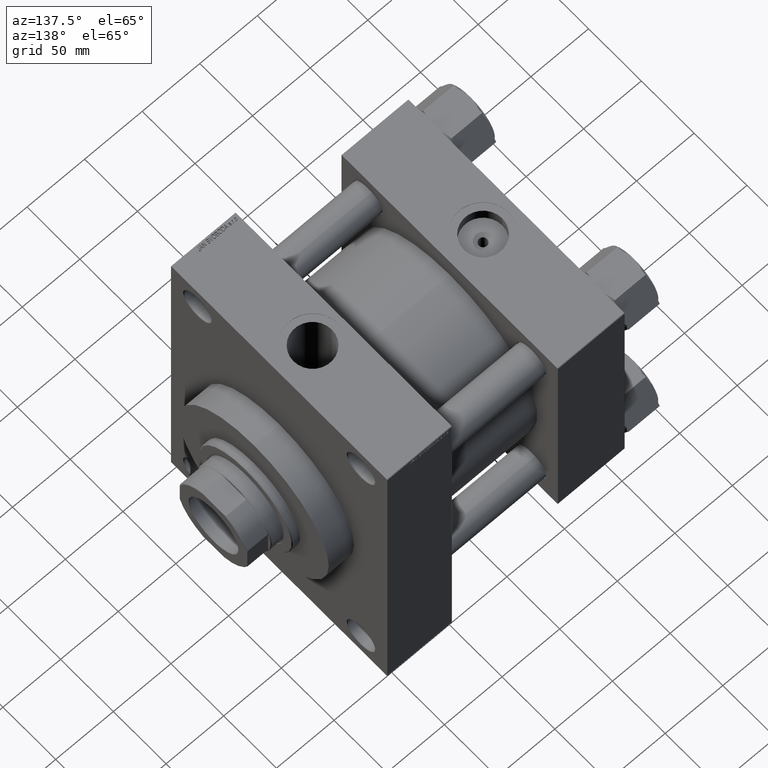
[diagram: clean part render]
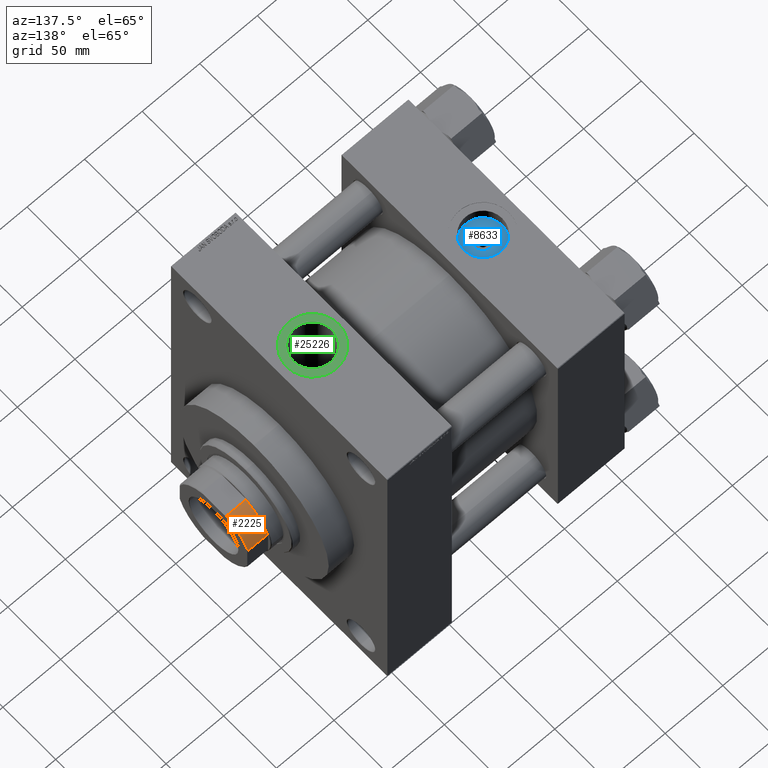
[diagram: same view with three faces highlighted in distinct colors, each labeled with its STEP entity id]
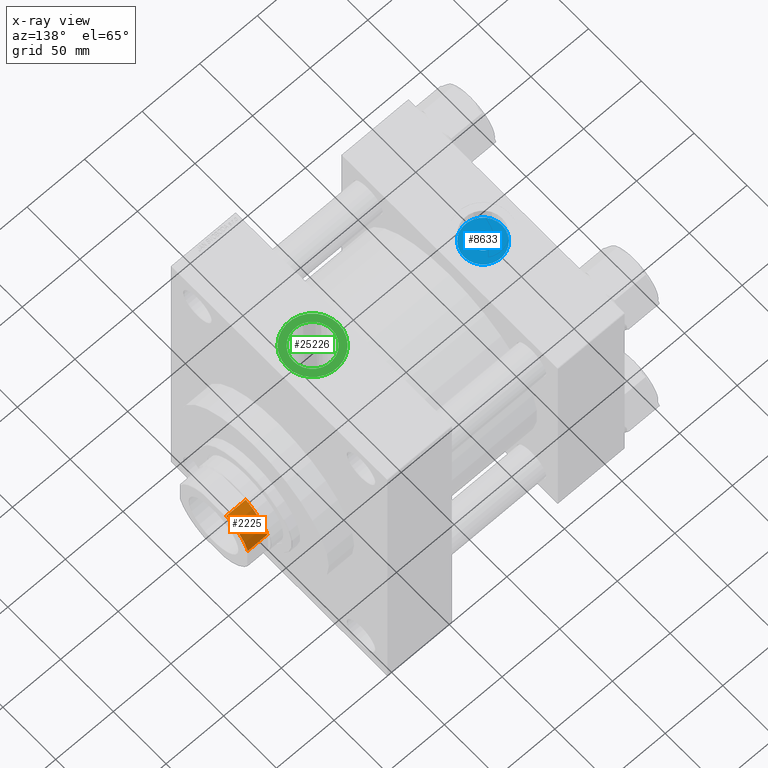
[diagram: x-ray of the same camera — body ghosted, the three highlighted faces saturated]
A machine part, auxiliary view with three faces highlighted in distinct colors.
The next image is the same camera in x-ray (body ghosted, the three faces saturated) — at least one of them is partly hidden behind the body in this view.
Their STEP definitions:

[orange] entity #2225 — the highlighted cylindrical surface (partial cylindrical patch) has radius 34 mm, axis along (1, 0, 0).
#373 = VERTEX_POINT ( 'NONE', #11302 ) ;
#844 = CIRCLE ( 'NONE', #10875, 34.00000000000000000 ) ;
#2225 = ADVANCED_FACE ( 'NONE', ( #25625 ), #29240, .T. ) ;
#7397 = ORIENTED_EDGE ( 'NONE', *, *, #36973, .T. ) ;
#9173 = CARTESIAN_POINT ( 'NONE',  ( -11.48912529307606256, -32.00000000000000000, 204.4999999999997442 ) ) ;
#10465 = CARTESIAN_POINT ( 'NONE',  ( 0.000000000000000000, 0.000000000000000000, 187.5000000000000853 ) ) ;
#10630 = EDGE_CURVE ( 'NONE', #43075, #47226, #11281, .T. ) ;
#10875 = AXIS2_PLACEMENT_3D ( 'NONE', #10465, #25158, #18158 ) ;
#11281 = CIRCLE ( 'NONE', #35955, 34.00000000000000000 ) ;
#11302 = CARTESIAN_POINT ( 'NONE',  ( -31.99999999999999289, -11.48912529307609454, 187.5000000000000853 ) ) ;
#11425 = ORIENTED_EDGE ( 'NONE', *, *, #10630, .T. ) ;
#14829 = LINE ( 'NONE', #22040, #22110 ) ;
#18158 = DIRECTION ( 'NONE',  ( -1.000000000000000000, 0.000000000000000000, 0.000000000000000000 ) ) ;
#18166 = CARTESIAN_POINT ( 'NONE',  ( 0.000000000000000000, 0.000000000000000000, -0.001000000000001000089 ) ) ;
#18401 = VERTEX_POINT ( 'NONE', #22426 ) ;
#18501 = VECTOR ( 'NONE', #33820, 1000.000000000000000 ) ;
#19465 = EDGE_CURVE ( 'NONE', #373, #47226, #19828, .T. ) ;
#19828 = LINE ( 'NONE', #22718, #18501 ) ;
#21034 = EDGE_CURVE ( 'NONE', #373, #18401, #844, .T. ) ;
#21199 = CARTESIAN_POINT ( 'NONE',  ( 0.000000000000000000, 0.000000000000000000, 204.4999999999998010 ) ) ;
#21929 = AXIS2_PLACEMENT_3D ( 'NONE', #18166, #22491, #44893 ) ;
#22040 = CARTESIAN_POINT ( 'NONE',  ( -11.48912529307606256, -32.00000000000000000, -0.001000000000001000089 ) ) ;
#22110 = VECTOR ( 'NONE', #33609, 1000.000000000000000 ) ;
#22426 = CARTESIAN_POINT ( 'NONE',  ( -11.48912529307606256, -32.00000000000000000, 187.5000000000000853 ) ) ;
#22491 = DIRECTION ( 'NONE',  ( -0.000000000000000000, -0.000000000000000000, 1.000000000000000000 ) ) ;
#22718 = CARTESIAN_POINT ( 'NONE',  ( -31.99999999999999289, -11.48912529307609454, -0.001000000000001000089 ) ) ;
#25158 = DIRECTION ( 'NONE',  ( -0.000000000000000000, -0.000000000000000000, 1.000000000000000000 ) ) ;
#25625 = FACE_OUTER_BOUND ( 'NONE', #26316, .T. ) ;
#26316 = EDGE_LOOP ( 'NONE', ( #7397, #11425, #30455, #30575 ) ) ;
#29189 = CARTESIAN_POINT ( 'NONE',  ( -31.99999999999999289, -11.48912529307609454, 204.4999999999997442 ) ) ;
#29240 = CYLINDRICAL_SURFACE ( 'NONE', #21929, 34.00000000000000000 ) ;
#30455 = ORIENTED_EDGE ( 'NONE', *, *, #19465, .F. ) ;
#30575 = ORIENTED_EDGE ( 'NONE', *, *, #21034, .T. ) ;
#31323 = DIRECTION ( 'NONE',  ( 1.000000000000000000, 0.000000000000000000, 0.000000000000000000 ) ) ;
#32271 = DIRECTION ( 'NONE',  ( -0.000000000000000000, -0.000000000000000000, -1.000000000000000000 ) ) ;
#33609 = DIRECTION ( 'NONE',  ( -0.000000000000000000, -0.000000000000000000, 1.000000000000000000 ) ) ;
#33820 = DIRECTION ( 'NONE',  ( -0.000000000000000000, -0.000000000000000000, 1.000000000000000000 ) ) ;
#35955 = AXIS2_PLACEMENT_3D ( 'NONE', #21199, #32271, #31323 ) ;
#36973 = EDGE_CURVE ( 'NONE', #18401, #43075, #14829, .T. ) ;
#43075 = VERTEX_POINT ( 'NONE', #9173 ) ;
#44893 = DIRECTION ( 'NONE',  ( 1.000000000000000000, 0.000000000000000000, 0.000000000000000000 ) ) ;
#47226 = VERTEX_POINT ( 'NONE', #29189 ) ;

[blue] entity #8633 — the highlighted planar face has unit normal (0, 0, 1).
#2320 = AXIS2_PLACEMENT_3D ( 'NONE', #43201, #47498, #32106 ) ;
#3750 = DIRECTION ( 'NONE',  ( 1.000000000000000000, 0.000000000000000000, -0.000000000000000000 ) ) ;
#3797 = CIRCLE ( 'NONE', #2320, 16.62000000000000099 ) ;
#3935 = EDGE_CURVE ( 'NONE', #8108, #8401, #38940, .T. ) ;
#4220 = AXIS2_PLACEMENT_3D ( 'NONE', #26387, #4931, #18915 ) ;
#4931 = DIRECTION ( 'NONE',  ( -0.000000000000000000, -0.000000000000000000, -1.000000000000000000 ) ) ;
#7857 = PLANE ( 'NONE',  #39097 ) ;
#8108 = VERTEX_POINT ( 'NONE', #39061 ) ;
#8401 = VERTEX_POINT ( 'NONE', #25984 ) ;
#8633 = ADVANCED_FACE ( 'NONE', ( #11721, #15333 ), #7857, .T. ) ;
#11442 = VERTEX_POINT ( 'NONE', #14312 ) ;
#11721 = FACE_BOUND ( 'NONE', #19911, .T. ) ;
#13753 = EDGE_CURVE ( 'NONE', #42495, #11442, #42202, .T. ) ;
#14312 = CARTESIAN_POINT ( 'NONE',  ( 35.64000000000026347, -8.673617379884038628E-15, 91.70000000000000284 ) ) ;
#14620 = DIRECTION ( 'NONE',  ( 1.000000000000000000, 0.000000000000000000, 0.000000000000000000 ) ) ;
#15333 = FACE_OUTER_BOUND ( 'NONE', #18211, .T. ) ;
#15773 = CIRCLE ( 'NONE', #4220, 6.640000000000253699 ) ;
#18211 = EDGE_LOOP ( 'NONE', ( #40504, #32554 ) ) ;
#18915 = DIRECTION ( 'NONE',  ( 1.000000000000000000, 0.000000000000000000, 0.000000000000000000 ) ) ;
#19660 = ORIENTED_EDGE ( 'NONE', *, *, #31097, .T. ) ;
#19911 = EDGE_LOOP ( 'NONE', ( #19660, #46898 ) ) ;
#22786 = CARTESIAN_POINT ( 'NONE',  ( 29.00000000000000000, -8.673617379884038628E-15, 91.70000000000000284 ) ) ;
#23500 = AXIS2_PLACEMENT_3D ( 'NONE', #33639, #40622, #14620 ) ;
#25184 = CARTESIAN_POINT ( 'NONE',  ( 29.00000000000000000, -8.673617379884038628E-15, 91.70000000000000284 ) ) ;
#25984 = CARTESIAN_POINT ( 'NONE',  ( 45.61999999999999744, -8.673617379884038628E-15, 91.70000000000000284 ) ) ;
#26387 = CARTESIAN_POINT ( 'NONE',  ( 29.00000000000000000, -8.673617379884038628E-15, 91.70000000000000284 ) ) ;
#29539 = DIRECTION ( 'NONE',  ( 0.000000000000000000, 0.000000000000000000, 1.000000000000000000 ) ) ;
#31097 = EDGE_CURVE ( 'NONE', #11442, #42495, #15773, .T. ) ;
#32106 = DIRECTION ( 'NONE',  ( 1.000000000000000000, 0.000000000000000000, 0.000000000000000000 ) ) ;
#32554 = ORIENTED_EDGE ( 'NONE', *, *, #3935, .T. ) ;
#33639 = CARTESIAN_POINT ( 'NONE',  ( 29.00000000000000000, -8.673617379884038628E-15, 91.70000000000000284 ) ) ;
#33733 = AXIS2_PLACEMENT_3D ( 'NONE', #25184, #43280, #39439 ) ;
#38940 = CIRCLE ( 'NONE', #23500, 16.62000000000000099 ) ;
#39061 = CARTESIAN_POINT ( 'NONE',  ( 12.38000000000000256, -6.638254399701137815E-15, 91.70000000000000284 ) ) ;
#39097 = AXIS2_PLACEMENT_3D ( 'NONE', #22786, #29539, #3750 ) ;
#39439 = DIRECTION ( 'NONE',  ( 1.000000000000000000, 0.000000000000000000, 0.000000000000000000 ) ) ;
#40504 = ORIENTED_EDGE ( 'NONE', *, *, #46524, .T. ) ;
#40622 = DIRECTION ( 'NONE',  ( 0.000000000000000000, 0.000000000000000000, 1.000000000000000000 ) ) ;
#42202 = CIRCLE ( 'NONE', #33733, 6.640000000000253699 ) ;
#42495 = VERTEX_POINT ( 'NONE', #45078 ) ;
#43201 = CARTESIAN_POINT ( 'NONE',  ( 29.00000000000000000, -8.673617379884038628E-15, 91.70000000000000284 ) ) ;
#43280 = DIRECTION ( 'NONE',  ( -0.000000000000000000, -0.000000000000000000, -1.000000000000000000 ) ) ;
#45078 = CARTESIAN_POINT ( 'NONE',  ( 22.35999999999974364, -7.860451905250165752E-15, 91.70000000000000284 ) ) ;
#46524 = EDGE_CURVE ( 'NONE', #8401, #8108, #3797, .T. ) ;
#46898 = ORIENTED_EDGE ( 'NONE', *, *, #13753, .T. ) ;
#47498 = DIRECTION ( 'NONE',  ( 0.000000000000000000, 0.000000000000000000, 1.000000000000000000 ) ) ;

[green] entity #25226 — the highlighted planar face has unit normal (0, 0, 1).
#149 = FACE_BOUND ( 'NONE', #46778, .T. ) ;
#155 = CARTESIAN_POINT ( 'NONE',  ( 177.0000000000000000, 0.000000000000000000, 148.2999999999999829 ) ) ;
#860 = ORIENTED_EDGE ( 'NONE', *, *, #38280, .T. ) ;
#1265 = AXIS2_PLACEMENT_3D ( 'NONE', #155, #29559, #19197 ) ;
#2508 = ORIENTED_EDGE ( 'NONE', *, *, #5713, .T. ) ;
#3146 = DIRECTION ( 'NONE',  ( -0.000000000000000000, -0.000000000000000000, -1.000000000000000000 ) ) ;
#5713 = EDGE_CURVE ( 'NONE', #9748, #13722, #23612, .T. ) ;
#7152 = CARTESIAN_POINT ( 'NONE',  ( 177.0000000000000000, 0.000000000000000000, 148.2999999999999829 ) ) ;
#7626 = PLANE ( 'NONE',  #33996 ) ;
#8032 = DIRECTION ( 'NONE',  ( 0.000000000000000000, 0.000000000000000000, 1.000000000000000000 ) ) ;
#9748 = VERTEX_POINT ( 'NONE', #27464 ) ;
#11319 = CARTESIAN_POINT ( 'NONE',  ( 177.0000000000000000, 0.000000000000000000, 148.2999999999999829 ) ) ;
#11493 = FACE_OUTER_BOUND ( 'NONE', #33838, .T. ) ;
#12028 = ORIENTED_EDGE ( 'NONE', *, *, #24209, .T. ) ;
#13722 = VERTEX_POINT ( 'NONE', #39889 ) ;
#14412 = VERTEX_POINT ( 'NONE', #39331 ) ;
#17054 = CIRCLE ( 'NONE', #36266, 22.49999999999999289 ) ;
#18788 = DIRECTION ( 'NONE',  ( 1.000000000000000000, 0.000000000000000000, 0.000000000000000000 ) ) ;
#18963 = CARTESIAN_POINT ( 'NONE',  ( 154.5000000000000000, 2.755455298081541228E-15, 148.2999999999999829 ) ) ;
#19197 = DIRECTION ( 'NONE',  ( 1.000000000000000000, 0.000000000000000000, 0.000000000000000000 ) ) ;
#21772 = DIRECTION ( 'NONE',  ( 1.000000000000000000, 0.000000000000000000, 0.000000000000000000 ) ) ;
#22331 = DIRECTION ( 'NONE',  ( 0.000000000000000000, 0.000000000000000000, 1.000000000000000000 ) ) ;
#22741 = CIRCLE ( 'NONE', #46607, 22.49999999999999289 ) ;
#23612 = CIRCLE ( 'NONE', #1265, 16.62000000000002231 ) ;
#24209 = EDGE_CURVE ( 'NONE', #14412, #38843, #17054, .T. ) ;
#25226 = ADVANCED_FACE ( 'NONE', ( #149, #11493 ), #7626, .T. ) ;
#27464 = CARTESIAN_POINT ( 'NONE',  ( 160.3799999999999670, 0.000000000000000000, 148.2999999999999829 ) ) ;
#29559 = DIRECTION ( 'NONE',  ( -0.000000000000000000, -0.000000000000000000, -1.000000000000000000 ) ) ;
#31904 = EDGE_CURVE ( 'NONE', #38843, #14412, #22741, .T. ) ;
#33838 = EDGE_LOOP ( 'NONE', ( #12028, #39431 ) ) ;
#33996 = AXIS2_PLACEMENT_3D ( 'NONE', #7152, #22331, #44741 ) ;
#36266 = AXIS2_PLACEMENT_3D ( 'NONE', #39934, #8032, #37674 ) ;
#37674 = DIRECTION ( 'NONE',  ( 1.000000000000000000, 0.000000000000000000, 0.000000000000000000 ) ) ;
#38280 = EDGE_CURVE ( 'NONE', #13722, #9748, #39152, .T. ) ;
#38843 = VERTEX_POINT ( 'NONE', #18963 ) ;
#39152 = CIRCLE ( 'NONE', #41430, 16.62000000000002231 ) ;
#39331 = CARTESIAN_POINT ( 'NONE',  ( 199.4999999999999716, 0.000000000000000000, 148.2999999999999829 ) ) ;
#39431 = ORIENTED_EDGE ( 'NONE', *, *, #31904, .T. ) ;
#39889 = CARTESIAN_POINT ( 'NONE',  ( 193.6200000000000045, 2.035362980182900418E-15, 148.2999999999999829 ) ) ;
#39934 = CARTESIAN_POINT ( 'NONE',  ( 177.0000000000000000, 0.000000000000000000, 148.2999999999999829 ) ) ;
#40084 = DIRECTION ( 'NONE',  ( 0.000000000000000000, 0.000000000000000000, 1.000000000000000000 ) ) ;
#41430 = AXIS2_PLACEMENT_3D ( 'NONE', #11319, #3146, #18788 ) ;
#43698 = CARTESIAN_POINT ( 'NONE',  ( 177.0000000000000000, 0.000000000000000000, 148.2999999999999829 ) ) ;
#44741 = DIRECTION ( 'NONE',  ( 1.000000000000000000, 0.000000000000000000, -0.000000000000000000 ) ) ;
#46607 = AXIS2_PLACEMENT_3D ( 'NONE', #43698, #40084, #21772 ) ;
#46778 = EDGE_LOOP ( 'NONE', ( #2508, #860 ) ) ;